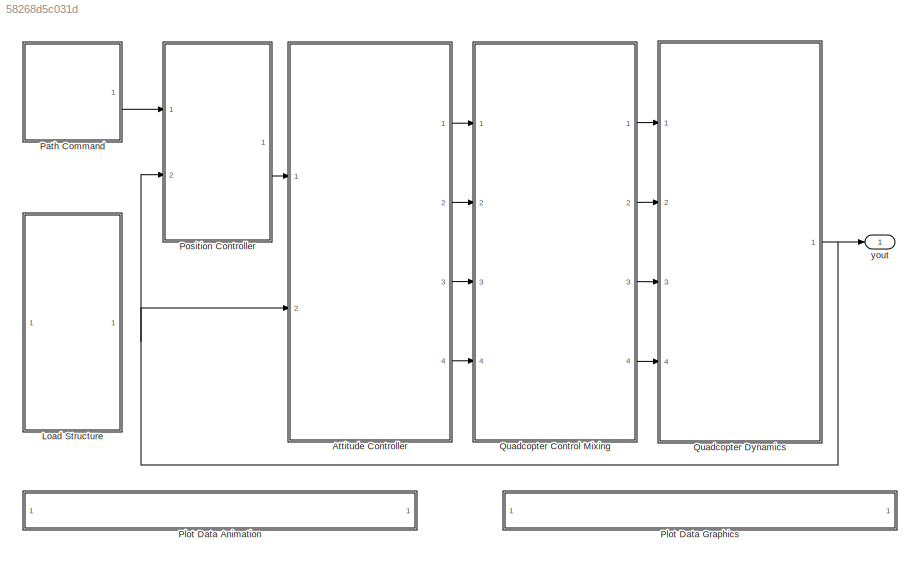
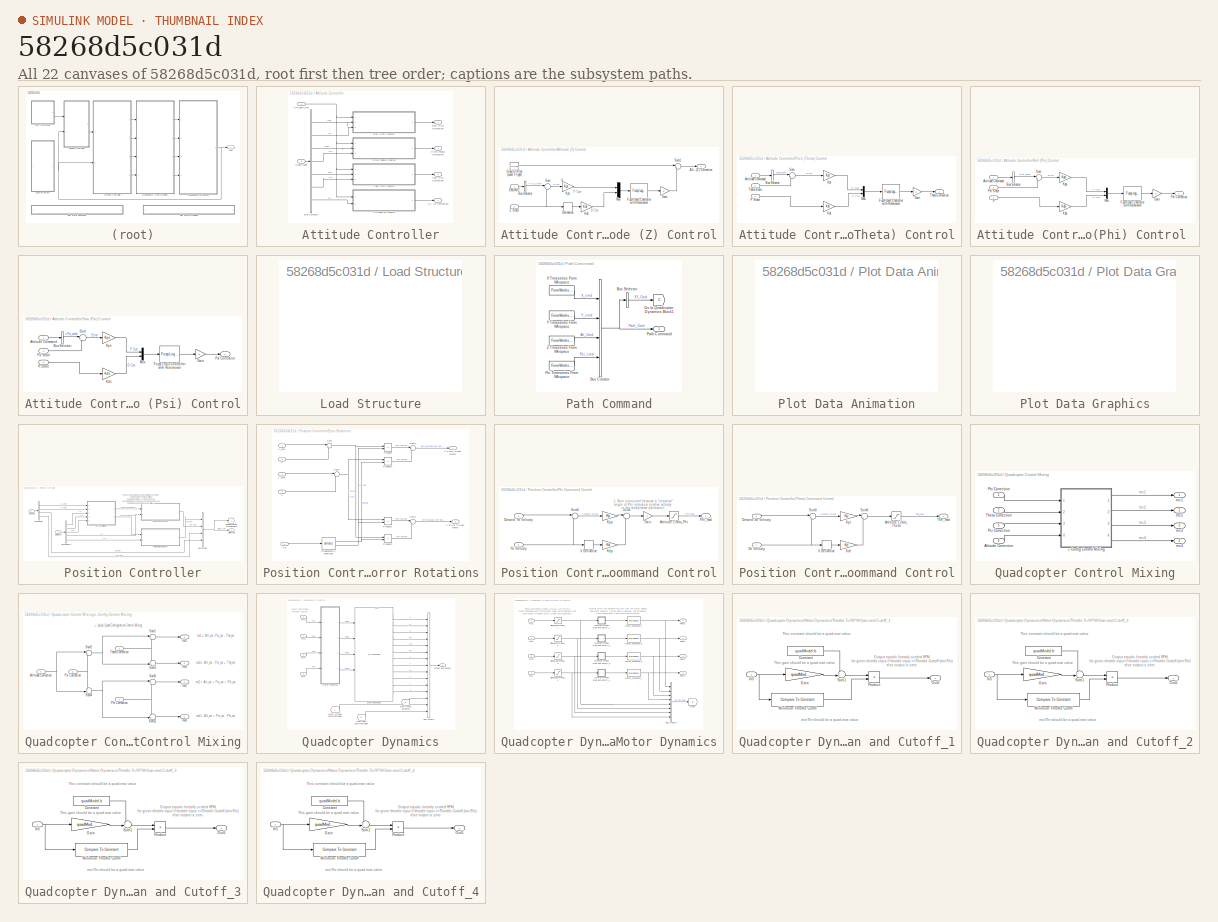
[diagram: thumbnail index - all 22 canvases of the model, root first then tree order]
MODEL slx_58268d5c031d
KIND model
CONFIG AbsTol = auto
CONFIG FixedStep = 0.05
CONFIG MaxStep = 0.06
CONFIG MinStep = auto
CONFIG RelTol = 1e-3
CONFIG SampleTimeConstraint = Unconstrained
CONFIG Solver = ode23
CONFIG SolverMode = Auto
CONFIG SolverName = ode23
CONFIG StartTime = 0.0
CONFIG StopTime = 45
WORKSPACE source: MAT-file member
WORKSPACE MCOS: class17 (value not decoded)
BLOCK [SubSystem] Attitude Controller
  Ports = [2, 4]
  RequestExecContextInheritance = off
BLOCK [Outport] Attitude Controller/Alt. (Z) Correction
  IconDisplay = Port number
  Port = 4
BLOCK [SubSystem] Attitude Controller/Altitude (Z) Control
  Ports = [2, 1]
  RequestExecContextInheritance = off
BLOCK [Outport] Attitude Controller/Altitude (Z) Control/Alt. (Z) Correction
  IconDisplay = Port number
BLOCK [BusSelector] Attitude Controller/Altitude (Z) Control/Bus Selector
  OutputSignals = Alt_Cmd
  Ports = [1, 1]
BLOCK [Derivative] Attitude Controller/Altitude (Z) Control/Derivative
BLOCK [Inport] Attitude Controller/Altitude (Z) Control/Desired Z
  IconDisplay = Port number
BLOCK [Reference] Attitude Controller/Altitude (Z) Control/Fuzzy Logic Controller with Ruleviewer  REF=fuzblock/Fuzzy Logic   (lib defined in mdl_858b3b3e7478)
Controller 
with Ruleviewer
  Ports = [1, 1]
  SourceBlock = fuzblock/Fuzzy Logic \nController \nwith Ruleviewer
  SourceType = FIS
  Ts = 2
  fismatrix = Z_correction
BLOCK [Gain] Attitude Controller/Altitude (Z) Control/Gain
  OutDataTypeStr = Inherit: Inherit via internal rule
  ParamDataTypeStr = Inherit: Inherit via internal rule
  SaturateOnIntegerOverflow = off
BLOCK [Constant] Attitude Controller/Altitude (Z) Control/Gravity Offset (Level Flight)
  Value = GOffset
BLOCK [Gain] Attitude Controller/Altitude (Z) Control/Kdz
  Gain = Kdz
  OutDataTypeStr = Inherit: Inherit via internal rule
  ParamDataTypeStr = Inherit: Inherit via internal rule
  SaturateOnIntegerOverflow = off
BLOCK [Gain] Attitude Controller/Altitude (Z) Control/Kpz
  Gain = Kpz
  OutDataTypeStr = Inherit: Inherit via internal rule
  ParamDataTypeStr = Inherit: Inherit via internal rule
  SaturateOnIntegerOverflow = off
BLOCK [Mux] Attitude Controller/Altitude (Z) Control/Mux
  DisplayOption = bar
  Inputs = 2
  Ports = [2, 1]
BLOCK [Sum] Attitude Controller/Altitude (Z) Control/Sum
  IconShape = round
  InputSameDT = off
  Inputs = |+-
  OutDataTypeStr = Inherit: Inherit via internal rule
  Ports = [2, 1]
  SaturateOnIntegerOverflow = off
BLOCK [Sum] Attitude Controller/Altitude (Z) Control/Sum1
  IconShape = round
  InputSameDT = off
  Inputs = |++
  OutDataTypeStr = Inherit: Inherit via internal rule
  Ports = [2, 1]
  SaturateOnIntegerOverflow = off
BLOCK [Inport] Attitude Controller/Altitude (Z) Control/Z State
  IconDisplay = Port number
  Port = 2
BLOCK [Inport] Attitude Controller/Attitude Cmd
  IconDisplay = Port number
BLOCK [BusSelector] Attitude Controller/Bus Selector
  OutputSignals = Phi,P,The,Q,Psi,R,Z
  Ports = [1, 7]
BLOCK [SubSystem] Attitude Controller/Pitch (Theta) Control
  Ports = [3, 1]
  RequestExecContextInheritance = off
BLOCK [Inport] Attitude Controller/Pitch (Theta) Control/Attitude Command
  IconDisplay = Port number
BLOCK [BusSelector] Attitude Controller/Pitch (Theta) Control/Bus Selector
  OutputSignals = The_cmd
  Ports = [1, 1]
BLOCK [Reference] Attitude Controller/Pitch (Theta) Control/Fuzzy Logic Controller with Ruleviewer  REF=fuzblock/Fuzzy Logic   (lib defined in mdl_858b3b3e7478)
Controller 
with Ruleviewer
  Ports = [1, 1]
  SourceBlock = fuzblock/Fuzzy Logic \nController \nwith Ruleviewer
  SourceType = FIS
  Ts = 2
  fismatrix = pitch_correction2
BLOCK [Gain] Attitude Controller/Pitch (Theta) Control/Gain
  Gain = 5
  OutDataTypeStr = Inherit: Inherit via internal rule
  ParamDataTypeStr = Inherit: Inherit via internal rule
  SaturateOnIntegerOverflow = off
BLOCK [Gain] Attitude Controller/Pitch (Theta) Control/Kdt
  Gain = Kdt
  OutDataTypeStr = Inherit: Inherit via internal rule
  ParamDataTypeStr = Inherit: Inherit via internal rule
  SaturateOnIntegerOverflow = off
BLOCK [Gain] Attitude Controller/Pitch (Theta) Control/Kpt
  Gain = Kpt
  OutDataTypeStr = Inherit: Inherit via internal rule
  ParamDataTypeStr = Inherit: Inherit via internal rule
  SaturateOnIntegerOverflow = off
BLOCK [Mux] Attitude Controller/Pitch (Theta) Control/Mux
  DisplayOption = bar
  Inputs = 2
  Ports = [2, 1]
BLOCK [Inport] Attitude Controller/Pitch (Theta) Control/P State
  IconDisplay = Port number
  Port = 3
BLOCK [Sum] Attitude Controller/Pitch (Theta) Control/Sum
  IconShape = round
  InputSameDT = off
  Inputs = |+-
  OutDataTypeStr = Inherit: Inherit via internal rule
  Ports = [2, 1]
  SaturateOnIntegerOverflow = off
BLOCK [Outport] Attitude Controller/Pitch (Theta) Control/Theta Correction
  IconDisplay = Port number
BLOCK [Inport] Attitude Controller/Pitch (Theta) Control/Theta State
  IconDisplay = Port number
  Port = 2
BLOCK [Outport] Attitude Controller/Pitch (Theta) Correction
  IconDisplay = Port number
  Port = 2
BLOCK [SubSystem] Attitude Controller/Roll (Phi) Control 
  Ports = [3, 1]
  RequestExecContextInheritance = off
BLOCK [Inport] Attitude Controller/Roll (Phi) Control /Attitude Command 
  IconDisplay = Port number
BLOCK [BusSelector] Attitude Controller/Roll (Phi) Control /Bus Selector
  OutputSignals = Phi_cmd
  Ports = [1, 1]
BLOCK [Reference] Attitude Controller/Roll (Phi) Control /Fuzzy Logic Controller with Ruleviewer  REF=fuzblock/Fuzzy Logic   (lib defined in mdl_858b3b3e7478)
Controller 
with Ruleviewer
  Ports = [1, 1]
  SourceBlock = fuzblock/Fuzzy Logic \nController \nwith Ruleviewer
  SourceType = FIS
  Ts = 2
  fismatrix = roll_correction2
BLOCK [Gain] Attitude Controller/Roll (Phi) Control /Gain
  Gain = 5
  OutDataTypeStr = Inherit: Inherit via internal rule
  ParamDataTypeStr = Inherit: Inherit via internal rule
  SaturateOnIntegerOverflow = off
BLOCK [Gain] Attitude Controller/Roll (Phi) Control /Kdp
  Gain = Kdp
  OutDataTypeStr = Inherit: Inherit via internal rule
  ParamDataTypeStr = Inherit: Inherit via internal rule
  SaturateOnIntegerOverflow = off
BLOCK [Gain] Attitude Controller/Roll (Phi) Control /Kpp
  Gain = Kpp
  OutDataTypeStr = Inherit: Inherit via internal rule
  ParamDataTypeStr = Inherit: Inherit via internal rule
  SaturateOnIntegerOverflow = off
BLOCK [Mux] Attitude Controller/Roll (Phi) Control /Mux
  DisplayOption = bar
  Inputs = 2
  Ports = [2, 1]
BLOCK [Inport] Attitude Controller/Roll (Phi) Control /P
  IconDisplay = Port number
  Port = 3
BLOCK [Outport] Attitude Controller/Roll (Phi) Control /Phi Correction
  IconDisplay = Port number
BLOCK [Inport] Attitude Controller/Roll (Phi) Control /Phi State
  IconDisplay = Port number
  Port = 2
BLOCK [Sum] Attitude Controller/Roll (Phi) Control /Sum
  IconShape = round
  InputSameDT = off
  Inputs = |+-
  OutDataTypeStr = Inherit: Inherit via internal rule
  Ports = [2, 1]
  SaturateOnIntegerOverflow = off
BLOCK [Outport] Attitude Controller/Roll (Phi) Correction
  IconDisplay = Port number
BLOCK [Inport] Attitude Controller/State Input
  IconDisplay = Port number
  Port = 2
BLOCK [SubSystem] Attitude Controller/Yaw (Psi) Control
  Ports = [3, 1]
  RequestExecContextInheritance = off
BLOCK [Inport] Attitude Controller/Yaw (Psi) Control/Attitude Command
  IconDisplay = Port number
BLOCK [BusSelector] Attitude Controller/Yaw (Psi) Control/Bus Selector
  OutputSignals = Psi_cmd
  Ports = [1, 1]
BLOCK [Reference] Attitude Controller/Yaw (Psi) Control/Fuzzy Logic Controller with Ruleviewer  REF=fuzblock/Fuzzy Logic   (lib defined in mdl_858b3b3e7478)
Controller 
with Ruleviewer
  Ports = [1, 1]
  SourceBlock = fuzblock/Fuzzy Logic \nController \nwith Ruleviewer
  SourceType = FIS
  Ts = 2
  fismatrix = yaw_correction2
BLOCK [Gain] Attitude Controller/Yaw (Psi) Control/Gain
  Gain = 5
  OutDataTypeStr = Inherit: Inherit via internal rule
  ParamDataTypeStr = Inherit: Inherit via internal rule
  SaturateOnIntegerOverflow = off
BLOCK [Gain] Attitude Controller/Yaw (Psi) Control/Kds
  Gain = Kds
  OutDataTypeStr = Inherit: Inherit via internal rule
  ParamDataTypeStr = Inherit: Inherit via internal rule
  SaturateOnIntegerOverflow = off
BLOCK [Gain] Attitude Controller/Yaw (Psi) Control/Kps
  Gain = Kps
  OutDataTypeStr = Inherit: Inherit via internal rule
  ParamDataTypeStr = Inherit: Inherit via internal rule
  SaturateOnIntegerOverflow = off
BLOCK [Mux] Attitude Controller/Yaw (Psi) Control/Mux
  DisplayOption = bar
  Inputs = 2
  Ports = [2, 1]
BLOCK [Outport] Attitude Controller/Yaw (Psi) Control/Psi Correction
  IconDisplay = Port number
BLOCK [Inport] Attitude Controller/Yaw (Psi) Control/Psi State
  IconDisplay = Port number
  Port = 2
BLOCK [Inport] Attitude Controller/Yaw (Psi) Control/R State
  IconDisplay = Port number
  Port = 3
BLOCK [Sum] Attitude Controller/Yaw (Psi) Control/Sum
  IconShape = round
  InputSameDT = off
  Inputs = |+-
  OutDataTypeStr = Inherit: Inherit via internal rule
  Ports = [2, 1]
  SaturateOnIntegerOverflow = off
BLOCK [Outport] Attitude Controller/Yaw (Psi) Correction
  IconDisplay = Port number
  Port = 3
BLOCK [SubSystem] Load Structure
  OpenFcn = uiopen('load')                                                        \nif ((exist('IC')==1) && (exist('quadModel')==1) && (exist('path')==1))\nset_param(bdroot, 'SimulationCommand', 'update')                      \nend
  Ports = []
  RequestExecContextInheritance = off
  ShowPortLabels = FromPortBlockName
BLOCK [SubSystem] Path Command
  Ports = [0, 1]
  RequestExecContextInheritance = off
BLOCK [BusCreator] Path Command/Bus Creator
  DisplayOption = bar
  Ports = [4, 1]
BLOCK [BusSelector] Path Command/Bus Selector
  OutputAsBus = on
  OutputSignals = X_cmd,Y_cmd
  Ports = [1, 1]
BLOCK [Goto] Path Command/Go to Quadcopter Dynamics Block1
  GotoTag = C
  TagVisibility = global
BLOCK [Outport] Path Command/Path Command 
  IconDisplay = Port number
BLOCK [FromWorkspace] Path Command/Psi Timeseries From Wkspace
  OutputAfterFinalValue = Holding final value
  SampleTime = 0
  VariableName = path.psi
  ZeroCross = on
BLOCK [FromWorkspace] Path Command/X Timeseries From Wkspace
  OutputAfterFinalValue = Holding final value
  SampleTime = 0
  VariableName = path.x
  ZeroCross = on
BLOCK [FromWorkspace] Path Command/Y Timeseries From Wkspace
  OutputAfterFinalValue = Holding final value
  SampleTime = 0
  VariableName = path.y
  ZeroCross = on
BLOCK [FromWorkspace] Path Command/Z Timeseries From Wkspace
  OutputAfterFinalValue = Holding final value
  SampleTime = 0
  VariableName = path.z
  ZeroCross = on
BLOCK [SubSystem] Plot Data Animation
  OpenFcn = if exist('QuadAnim4') == 2,                                                                                                                 \n    if exist('yout')                                                                                                                        \n	run('QuadAnim4');                                                                                                    ...<+590ch>
  Ports = []
  RequestExecContextInheritance = off
  ShowPortLabels = FromPortBlockName
BLOCK [SubSystem] Plot Data Graphics
  OpenFcn = if exist('yout')                                            \nyout = evalin('base', 'yout');                              \ntout = evalin('base', 'tout');                              \nquadPlots(yout, tout)                                       \nelse                                                        \nmsgbox('Simulation must be run before data can be plotted.')\nend
  Ports = []
  RequestExecContextInheritance = off
  ShowPortLabels = FromPortBlockName
BLOCK [SubSystem] Position Controller
  Ports = [2, 1]
  RequestExecContextInheritance = off
BLOCK [Outport] Position Controller/Attitude Cmd
  IconDisplay = Port number
BLOCK [BusCreator] Position Controller/Bus Creator
  DisplayOption = bar
  Ports = [4, 1]
BLOCK [BusSelector] Position Controller/Bus Selector
  OutputSignals = X_cmd,Y_cmd,Alt_Cmd,Psi_cmd
  Ports = [1, 4]
BLOCK [BusSelector] Position Controller/Bus Selector1
  OutputSignals = X,Y,Psi,U,V
  Ports = [1, 5]
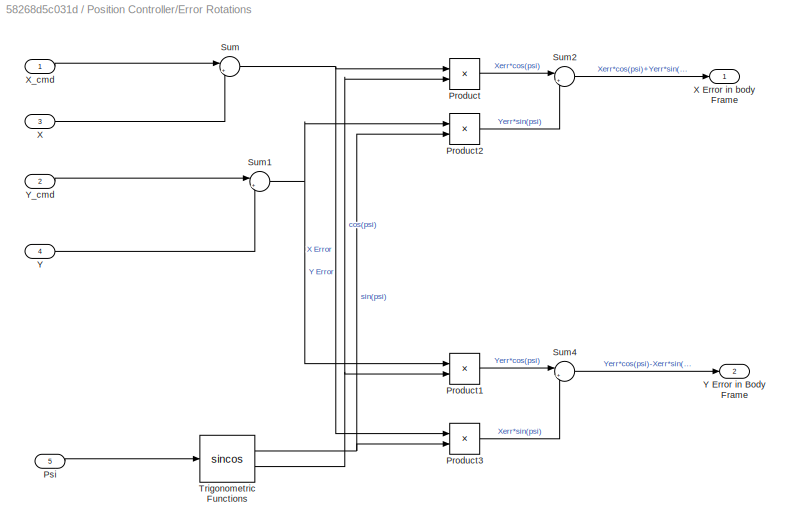
BLOCK [SubSystem] Position Controller/Error Rotations
  Ports = [5, 2]
  RequestExecContextInheritance = off
BLOCK [Product] Position Controller/Error Rotations/Product
  InputSameDT = off
  OutDataTypeStr = Inherit: Inherit via internal rule
  Ports = [2, 1]
  RndMeth = Floor
  SaturateOnIntegerOverflow = off
BLOCK [Product] Position Controller/Error Rotations/Product1
  InputSameDT = off
  OutDataTypeStr = Inherit: Inherit via internal rule
  Ports = [2, 1]
  RndMeth = Floor
  SaturateOnIntegerOverflow = off
BLOCK [Product] Position Controller/Error Rotations/Product2
  InputSameDT = off
  OutDataTypeStr = Inherit: Inherit via internal rule
  Ports = [2, 1]
  RndMeth = Floor
  SaturateOnIntegerOverflow = off
BLOCK [Product] Position Controller/Error Rotations/Product3
  InputSameDT = off
  OutDataTypeStr = Inherit: Inherit via internal rule
  Ports = [2, 1]
  RndMeth = Floor
  SaturateOnIntegerOverflow = off
BLOCK [Inport] Position Controller/Error Rotations/Psi
  IconDisplay = Port number
  Port = 5
BLOCK [Sum] Position Controller/Error Rotations/Sum
  IconShape = round
  InputSameDT = off
  Inputs = |+-
  OutDataTypeStr = Inherit: Inherit via internal rule
  Ports = [2, 1]
  SaturateOnIntegerOverflow = off
BLOCK [Sum] Position Controller/Error Rotations/Sum1
  IconShape = round
  InputSameDT = off
  Inputs = |+-
  OutDataTypeStr = Inherit: Inherit via internal rule
  Ports = [2, 1]
  SaturateOnIntegerOverflow = off
BLOCK [Sum] Position Controller/Error Rotations/Sum2
  IconShape = round
  InputSameDT = off
  Inputs = |++
  OutDataTypeStr = Inherit: Inherit via internal rule
  Ports = [2, 1]
  SaturateOnIntegerOverflow = off
BLOCK [Sum] Position Controller/Error Rotations/Sum4
  IconShape = round
  InputSameDT = off
  Inputs = |+-
  OutDataTypeStr = Inherit: Inherit via internal rule
  Ports = [2, 1]
  SaturateOnIntegerOverflow = off
BLOCK [Trigonometry] Position Controller/Error Rotations/Trigonometric Functions
  Operator = sincos
  Ports = [1, 2]
BLOCK [Inport] Position Controller/Error Rotations/X
  IconDisplay = Port number
  Port = 3
BLOCK [Outport] Position Controller/Error Rotations/X Error in body Frame
  IconDisplay = Port number
BLOCK [Inport] Position Controller/Error Rotations/X_cmd
  IconDisplay = Port number
BLOCK [Inport] Position Controller/Error Rotations/Y
  IconDisplay = Port number
  Port = 4
BLOCK [Outport] Position Controller/Error Rotations/Y Error in Body Frame
  IconDisplay = Port number
  Port = 2
BLOCK [Inport] Position Controller/Error Rotations/Y_cmd
  IconDisplay = Port number
  Port = 2
BLOCK [Goto] Position Controller/Goto Quadcopter Dynamics Block
  TagVisibility = global
BLOCK [Inport] Position Controller/Path Cmd
  IconDisplay = Port number
BLOCK [SubSystem] Position Controller/Phi Command Control
  Ports = [2, 1]
  RequestExecContextInheritance = off
BLOCK [Saturate] Position Controller/Phi Command Control/Attitude Limits_Phi
  InputPortMap = u0
  LowerLimit = -ASat
  Ports = [1, 1]
  UpperLimit = ASat
BLOCK [Inport] Position Controller/Phi Command Control/Desired Yb Velocity
  IconDisplay = Port number
BLOCK [Gain] Position Controller/Phi Command Control/Gain
  Gain = -1
  OutDataTypeStr = Inherit: Inherit via internal rule
  ParamDataTypeStr = Inherit: Inherit via internal rule
  SaturateOnIntegerOverflow = off
BLOCK [Gain] Position Controller/Phi Command Control/Kdp
  Gain = Kd
  OutDataTypeStr = Inherit: Inherit via internal rule
  ParamDataTypeStr = Inherit: Inherit via internal rule
  SaturateOnIntegerOverflow = off
BLOCK [Gain] Position Controller/Phi Command Control/Kpp
  Gain = Kp
  OutDataTypeStr = Inherit: Inherit via internal rule
  ParamDataTypeStr = Inherit: Inherit via internal rule
  SaturateOnIntegerOverflow = off
BLOCK [Outport] Position Controller/Phi Command Control/Phi_cmd
  IconDisplay = Port number
BLOCK [Sum] Position Controller/Phi Command Control/Sum3
  IconShape = round
  InputSameDT = off
  Inputs = |+-
  OutDataTypeStr = Inherit: Inherit via internal rule
  Ports = [2, 1]
  SaturateOnIntegerOverflow = off
BLOCK [Sum] Position Controller/Phi Command Control/Sum6
  IconShape = round
  InputSameDT = off
  Inputs = |+-
  OutDataTypeStr = Inherit: Inherit via internal rule
  Ports = [2, 1]
  SaturateOnIntegerOverflow = off
BLOCK [Derivative] Position Controller/Phi Command Control/V Derivative
BLOCK [Inport] Position Controller/Phi Command Control/Yb Velocity
  IconDisplay = Port number
  Port = 2
BLOCK [Inport] Position Controller/State Input
  IconDisplay = Port number
  Port = 2
BLOCK [SubSystem] Position Controller/Theta Command Control
  Ports = [2, 1]
  RequestExecContextInheritance = off
BLOCK [Saturate] Position Controller/Theta Command Control/Attitude Limits_Theta
  InputPortMap = u0
  LowerLimit = -ASat
  Ports = [1, 1]
  UpperLimit = ASat
BLOCK [Inport] Position Controller/Theta Command Control/Desired Xb Velocity
  IconDisplay = Port number
BLOCK [Gain] Position Controller/Theta Command Control/Kdt
  Gain = Kd
  OutDataTypeStr = Inherit: Inherit via internal rule
  ParamDataTypeStr = Inherit: Inherit via internal rule
  SaturateOnIntegerOverflow = off
BLOCK [Gain] Position Controller/Theta Command Control/Kpt
  Gain = Kp
  OutDataTypeStr = Inherit: Inherit via internal rule
  ParamDataTypeStr = Inherit: Inherit via internal rule
  SaturateOnIntegerOverflow = off
BLOCK [Sum] Position Controller/Theta Command Control/Sum3
  IconShape = round
  InputSameDT = off
  Inputs = |+-
  OutDataTypeStr = Inherit: Inherit via internal rule
  Ports = [2, 1]
  SaturateOnIntegerOverflow = off
BLOCK [Sum] Position Controller/Theta Command Control/Sum6
  IconShape = round
  InputSameDT = off
  Inputs = |+-
  OutDataTypeStr = Inherit: Inherit via internal rule
  Ports = [2, 1]
  SaturateOnIntegerOverflow = off
BLOCK [Outport] Position Controller/Theta Command Control/The_cmd
  IconDisplay = Port number
BLOCK [Derivative] Position Controller/Theta Command Control/U Derivative
BLOCK [Inport] Position Controller/Theta Command Control/Xb Velocity
  IconDisplay = Port number
  Port = 2
BLOCK [SubSystem] Quadcopter Control Mixing
  Ports = [4, 4]
  RequestExecContextInheritance = off
BLOCK [SubSystem] Quadcopter Control Mixing/+ Config Control Mixing
  Ports = [4, 4]
  RequestExecContextInheritance = off
BLOCK [Inport] Quadcopter Control Mixing/+ Config Control Mixing/Altitude Correction
  IconDisplay = Port number
  Port = 4
BLOCK [Inport] Quadcopter Control Mixing/+ Config Control Mixing/Phi Correction
  IconDisplay = Port number
BLOCK [Inport] Quadcopter Control Mixing/+ Config Control Mixing/Psi Correction
  IconDisplay = Port number
  Port = 3
BLOCK [Sum] Quadcopter Control Mixing/+ Config Control Mixing/Sum1
  IconShape = round
  InputSameDT = off
  Inputs = |+-
  OutDataTypeStr = Inherit: Inherit via internal rule
  Ports = [2, 1]
  SaturateOnIntegerOverflow = off
BLOCK [Sum] Quadcopter Control Mixing/+ Config Control Mixing/Sum11
  IconShape = round
  InputSameDT = off
  Inputs = -+|
  OutDataTypeStr = Inherit: Inherit via internal rule
  Ports = [2, 1]
  SaturateOnIntegerOverflow = off
BLOCK [Sum] Quadcopter Control Mixing/+ Config Control Mixing/Sum2
  IconShape = round
  InputSameDT = off
  Inputs = |+-
  OutDataTypeStr = Inherit: Inherit via internal rule
  Ports = [2, 1]
  SaturateOnIntegerOverflow = off
BLOCK [Sum] Quadcopter Control Mixing/+ Config Control Mixing/Sum3
  IconShape = round
  InputSameDT = off
  Inputs = ++|
  OutDataTypeStr = Inherit: Inherit via internal rule
  Ports = [2, 1]
  SaturateOnIntegerOverflow = off
BLOCK [Sum] Quadcopter Control Mixing/+ Config Control Mixing/Sum4
  IconShape = round
  InputSameDT = off
  Inputs = ++|
  OutDataTypeStr = Inherit: Inherit via internal rule
  Ports = [2, 1]
  SaturateOnIntegerOverflow = off
BLOCK [Sum] Quadcopter Control Mixing/+ Config Control Mixing/Sum8
  IconShape = round
  InputSameDT = off
  Inputs = |++
  OutDataTypeStr = Inherit: Inherit via internal rule
  Ports = [2, 1]
  SaturateOnIntegerOverflow = off
BLOCK [Inport] Quadcopter Control Mixing/+ Config Control Mixing/Theta Correction
  IconDisplay = Port number
  Port = 2
BLOCK [Outport] Quadcopter Control Mixing/+ Config Control Mixing/mc1
  IconDisplay = Port number
BLOCK [Outport] Quadcopter Control Mixing/+ Config Control Mixing/mc2
  IconDisplay = Port number
  Port = 2
BLOCK [Outport] Quadcopter Control Mixing/+ Config Control Mixing/mc3
  IconDisplay = Port number
  Port = 3
BLOCK [Outport] Quadcopter Control Mixing/+ Config Control Mixing/mc4
  IconDisplay = Port number
  Port = 4
BLOCK [Inport] Quadcopter Control Mixing/Altitude Correction
  IconDisplay = Port number
  Port = 4
BLOCK [Inport] Quadcopter Control Mixing/Phi Correction
  IconDisplay = Port number
BLOCK [Inport] Quadcopter Control Mixing/Psi Correction
  IconDisplay = Port number
  Port = 3
BLOCK [Inport] Quadcopter Control Mixing/Theta Correction
  IconDisplay = Port number
  Port = 2
BLOCK [Outport] Quadcopter Control Mixing/mc1
  IconDisplay = Port number
BLOCK [Outport] Quadcopter Control Mixing/mc2
  IconDisplay = Port number
  Port = 2
BLOCK [Outport] Quadcopter Control Mixing/mc3
  IconDisplay = Port number
  Port = 3
BLOCK [Outport] Quadcopter Control Mixing/mc4
  IconDisplay = Port number
  Port = 4
BLOCK [SubSystem] Quadcopter Dynamics
  Ports = [4, 1]
  RequestExecContextInheritance = off
BLOCK [BusCreator] Quadcopter Dynamics/Bus Creator
  DisplayOption = bar
  Inputs = 'P','Q','R','Phi','The','Psi','U','V','W','X','Y','Z','mc and RPM','Attitude_Cmd','XY_Cmd'
  Ports = [15, 1]
BLOCK [From] Quadcopter Dynamics/From Attitude Command Block
  TagVisibility = global
BLOCK [From] Quadcopter Dynamics/From Motor Dynamics
  GotoTag = B
  TagVisibility = global
BLOCK [From] Quadcopter Dynamics/From Path Command Block
  GotoTag = C
  TagVisibility = global
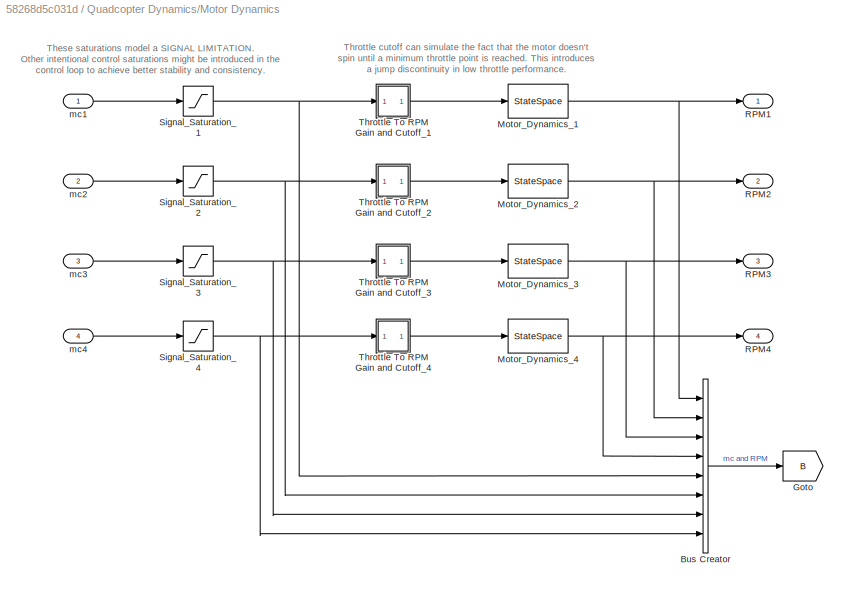
BLOCK [SubSystem] Quadcopter Dynamics/Motor Dynamics
  Ports = [4, 4]
  RequestExecContextInheritance = off
BLOCK [BusCreator] Quadcopter Dynamics/Motor Dynamics/Bus Creator
  DisplayOption = bar
  Inputs = 8
  Ports = [8, 1]
BLOCK [Goto] Quadcopter Dynamics/Motor Dynamics/Goto
  GotoTag = B
  TagVisibility = global
BLOCK [StateSpace] Quadcopter Dynamics/Motor Dynamics/Motor_Dynamics_1
  A = -1/quadModel.T
  C = 1/quadModel.T
  D = 0
  Ports = [1, 1]
  X0 = IC.w1*quadModel.T
BLOCK [StateSpace] Quadcopter Dynamics/Motor Dynamics/Motor_Dynamics_2
  A = -1/quadModel.T
  C = 1/quadModel.T
  D = 0
  Ports = [1, 1]
  X0 = IC.w2*quadModel.T
BLOCK [StateSpace] Quadcopter Dynamics/Motor Dynamics/Motor_Dynamics_3
  A = -1/quadModel.T
  C = 1/quadModel.T
  D = 0
  Ports = [1, 1]
  X0 = IC.w3*quadModel.T
BLOCK [StateSpace] Quadcopter Dynamics/Motor Dynamics/Motor_Dynamics_4
  A = -1/quadModel.T
  C = 1/quadModel.T
  D = 0
  Ports = [1, 1]
  X0 = IC.w4*quadModel.T
BLOCK [Outport] Quadcopter Dynamics/Motor Dynamics/RPM1
  IconDisplay = Port number
BLOCK [Outport] Quadcopter Dynamics/Motor Dynamics/RPM2
  IconDisplay = Port number
  Port = 2
BLOCK [Outport] Quadcopter Dynamics/Motor Dynamics/RPM3
  IconDisplay = Port number
  Port = 3
BLOCK [Outport] Quadcopter Dynamics/Motor Dynamics/RPM4
  IconDisplay = Port number
  Port = 4
BLOCK [Saturate] Quadcopter Dynamics/Motor Dynamics/Signal_Saturation_1
  InputPortMap = u0
  LowerLimit = 0
  Ports = [1, 1]
  UpperLimit = 100
BLOCK [Saturate] Quadcopter Dynamics/Motor Dynamics/Signal_Saturation_2
  InputPortMap = u0
  LowerLimit = 0
  Ports = [1, 1]
  UpperLimit = 100
BLOCK [Saturate] Quadcopter Dynamics/Motor Dynamics/Signal_Saturation_3
  InputPortMap = u0
  LowerLimit = 0
  Ports = [1, 1]
  UpperLimit = 100
BLOCK [Saturate] Quadcopter Dynamics/Motor Dynamics/Signal_Saturation_4
  InputPortMap = u0
  LowerLimit = 0
  Ports = [1, 1]
  UpperLimit = 100
BLOCK [SubSystem] Quadcopter Dynamics/Motor Dynamics/Throttle To RPM Gain and Cutoff_1
  Ports = [1, 1]
  RequestExecContextInheritance = off
  ShowPortLabels = none
BLOCK [Constant] Quadcopter Dynamics/Motor Dynamics/Throttle To RPM Gain and Cutoff_1/Constant
  Value = quadModel.b
BLOCK [Gain] Quadcopter Dynamics/Motor Dynamics/Throttle To RPM Gain and Cutoff_1/Gain
  Gain = quadModel.cr
  OutDataTypeStr = Inherit: Inherit via internal rule
  ParamDataTypeStr = Inherit: Inherit via internal rule
  SaturateOnIntegerOverflow = off
BLOCK [Inport] Quadcopter Dynamics/Motor Dynamics/Throttle To RPM Gain and Cutoff_1/In5
  IconDisplay = Port number
BLOCK [Reference] Quadcopter Dynamics/Motor Dynamics/Throttle To RPM Gain and Cutoff_1/Minimum Throttle Cutoff  REF=simulink/Logic and Bit
Operations/Compare
To Constant
  OutDataTypeStr = uint8
  Ports = [1, 1]
  SourceBlock = simulink/Logic and Bit\nOperations/Compare\nTo Constant
  SourceType = Compare To Constant
  ZeroCross = on
  const = quadModel.minThr
  relop = >=
BLOCK [Outport] Quadcopter Dynamics/Motor Dynamics/Throttle To RPM Gain and Cutoff_1/Out5
  IconDisplay = Port number
BLOCK [Product] Quadcopter Dynamics/Motor Dynamics/Throttle To RPM Gain and Cutoff_1/Product
  InputSameDT = off
  OutDataTypeStr = Inherit: Inherit via internal rule
  Ports = [2, 1]
  RndMeth = Floor
  SaturateOnIntegerOverflow = off
BLOCK [Sum] Quadcopter Dynamics/Motor Dynamics/Throttle To RPM Gain and Cutoff_1/Sum1
  IconShape = round
  InputSameDT = off
  Inputs = ++|
  OutDataTypeStr = Inherit: Inherit via internal rule
  Ports = [2, 1]
  SaturateOnIntegerOverflow = off
BLOCK [SubSystem] Quadcopter Dynamics/Motor Dynamics/Throttle To RPM Gain and Cutoff_2
  Ports = [1, 1]
  RequestExecContextInheritance = off
  ShowPortLabels = none
BLOCK [Constant] Quadcopter Dynamics/Motor Dynamics/Throttle To RPM Gain and Cutoff_2/Constant
  Value = quadModel.b
BLOCK [Gain] Quadcopter Dynamics/Motor Dynamics/Throttle To RPM Gain and Cutoff_2/Gain
  Gain = quadModel.cr
  OutDataTypeStr = Inherit: Inherit via internal rule
  ParamDataTypeStr = Inherit: Inherit via internal rule
  SaturateOnIntegerOverflow = off
BLOCK [Inport] Quadcopter Dynamics/Motor Dynamics/Throttle To RPM Gain and Cutoff_2/In5
  IconDisplay = Port number
BLOCK [Reference] Quadcopter Dynamics/Motor Dynamics/Throttle To RPM Gain and Cutoff_2/Minimum Throttle Cutoff  REF=simulink/Logic and Bit
Operations/Compare
To Constant
  OutDataTypeStr = uint8
  Ports = [1, 1]
  SourceBlock = simulink/Logic and Bit\nOperations/Compare\nTo Constant
  SourceType = Compare To Constant
  ZeroCross = on
  const = quadModel.minThr
  relop = >=
BLOCK [Outport] Quadcopter Dynamics/Motor Dynamics/Throttle To RPM Gain and Cutoff_2/Out5
  IconDisplay = Port number
BLOCK [Product] Quadcopter Dynamics/Motor Dynamics/Throttle To RPM Gain and Cutoff_2/Product
  InputSameDT = off
  OutDataTypeStr = Inherit: Inherit via internal rule
  Ports = [2, 1]
  RndMeth = Floor
  SaturateOnIntegerOverflow = off
BLOCK [Sum] Quadcopter Dynamics/Motor Dynamics/Throttle To RPM Gain and Cutoff_2/Sum1
  IconShape = round
  InputSameDT = off
  Inputs = ++|
  OutDataTypeStr = Inherit: Inherit via internal rule
  Ports = [2, 1]
  SaturateOnIntegerOverflow = off
BLOCK [SubSystem] Quadcopter Dynamics/Motor Dynamics/Throttle To RPM Gain and Cutoff_3
  Ports = [1, 1]
  RequestExecContextInheritance = off
  ShowPortLabels = none
BLOCK [Constant] Quadcopter Dynamics/Motor Dynamics/Throttle To RPM Gain and Cutoff_3/Constant
  Value = quadModel.b
BLOCK [Gain] Quadcopter Dynamics/Motor Dynamics/Throttle To RPM Gain and Cutoff_3/Gain
  Gain = quadModel.cr
  OutDataTypeStr = Inherit: Inherit via internal rule
  ParamDataTypeStr = Inherit: Inherit via internal rule
  SaturateOnIntegerOverflow = off
BLOCK [Inport] Quadcopter Dynamics/Motor Dynamics/Throttle To RPM Gain and Cutoff_3/In5
  IconDisplay = Port number
BLOCK [Reference] Quadcopter Dynamics/Motor Dynamics/Throttle To RPM Gain and Cutoff_3/Minimum Throttle Cutoff  REF=simulink/Logic and Bit
Operations/Compare
To Constant
  OutDataTypeStr = uint8
  Ports = [1, 1]
  SourceBlock = simulink/Logic and Bit\nOperations/Compare\nTo Constant
  SourceType = Compare To Constant
  ZeroCross = on
  const = quadModel.minThr
  relop = >=
BLOCK [Outport] Quadcopter Dynamics/Motor Dynamics/Throttle To RPM Gain and Cutoff_3/Out5
  IconDisplay = Port number
BLOCK [Product] Quadcopter Dynamics/Motor Dynamics/Throttle To RPM Gain and Cutoff_3/Product
  InputSameDT = off
  OutDataTypeStr = Inherit: Inherit via internal rule
  Ports = [2, 1]
  RndMeth = Floor
  SaturateOnIntegerOverflow = off
BLOCK [Sum] Quadcopter Dynamics/Motor Dynamics/Throttle To RPM Gain and Cutoff_3/Sum1
  IconShape = round
  InputSameDT = off
  Inputs = ++|
  OutDataTypeStr = Inherit: Inherit via internal rule
  Ports = [2, 1]
  SaturateOnIntegerOverflow = off
BLOCK [SubSystem] Quadcopter Dynamics/Motor Dynamics/Throttle To RPM Gain and Cutoff_4
  Ports = [1, 1]
  RequestExecContextInheritance = off
  ShowPortLabels = none
BLOCK [Constant] Quadcopter Dynamics/Motor Dynamics/Throttle To RPM Gain and Cutoff_4/Constant
  Value = quadModel.b
BLOCK [Gain] Quadcopter Dynamics/Motor Dynamics/Throttle To RPM Gain and Cutoff_4/Gain
  Gain = quadModel.cr
  OutDataTypeStr = Inherit: Inherit via internal rule
  ParamDataTypeStr = Inherit: Inherit via internal rule
  SaturateOnIntegerOverflow = off
BLOCK [Inport] Quadcopter Dynamics/Motor Dynamics/Throttle To RPM Gain and Cutoff_4/In5
  IconDisplay = Port number
BLOCK [Reference] Quadcopter Dynamics/Motor Dynamics/Throttle To RPM Gain and Cutoff_4/Minimum Throttle Cutoff  REF=simulink/Logic and Bit
Operations/Compare
To Constant
  OutDataTypeStr = uint8
  Ports = [1, 1]
  SourceBlock = simulink/Logic and Bit\nOperations/Compare\nTo Constant
  SourceType = Compare To Constant
  ZeroCross = on
  const = quadModel.minThr
  relop = >=
BLOCK [Outport] Quadcopter Dynamics/Motor Dynamics/Throttle To RPM Gain and Cutoff_4/Out5
  IconDisplay = Port number
BLOCK [Product] Quadcopter Dynamics/Motor Dynamics/Throttle To RPM Gain and Cutoff_4/Product
  InputSameDT = off
  OutDataTypeStr = Inherit: Inherit via internal rule
  Ports = [2, 1]
  RndMeth = Floor
  SaturateOnIntegerOverflow = off
BLOCK [Sum] Quadcopter Dynamics/Motor Dynamics/Throttle To RPM Gain and Cutoff_4/Sum1
  IconShape = round
  InputSameDT = off
  Inputs = ++|
  OutDataTypeStr = Inherit: Inherit via internal rule
  Ports = [2, 1]
  SaturateOnIntegerOverflow = off
BLOCK [Inport] Quadcopter Dynamics/Motor Dynamics/mc1
  IconDisplay = Port number
BLOCK [Inport] Quadcopter Dynamics/Motor Dynamics/mc2
  IconDisplay = Port number
  Port = 2
BLOCK [Inport] Quadcopter Dynamics/Motor Dynamics/mc3
  IconDisplay = Port number
  Port = 3
BLOCK [Inport] Quadcopter Dynamics/Motor Dynamics/mc4
  IconDisplay = Port number
  Port = 4
BLOCK [M-S-Function] Quadcopter Dynamics/State Equations
  FunctionName = quadcopterDynamicsSFunction
  Parameters = quadModel, IC
  Ports = [5, 12]
BLOCK [Outport] Quadcopter Dynamics/States and Output
  IconDisplay = Port number
BLOCK [Inport] Quadcopter Dynamics/mc1
  IconDisplay = Port number
BLOCK [Inport] Quadcopter Dynamics/mc2
  IconDisplay = Port number
  Port = 2
BLOCK [Inport] Quadcopter Dynamics/mc3
  IconDisplay = Port number
  Port = 3
BLOCK [Inport] Quadcopter Dynamics/mc4
  IconDisplay = Port number
  Port = 4
BLOCK [Outport] yout
  IconDisplay = Port number
ANNOTATION Attitude Controller/Altitude (Z) Control: D Corr
ANNOTATION Attitude Controller/Altitude (Z) Control: P Corr
ANNOTATION Attitude Controller/Altitude (Z) Control: ez
ANNOTATION Position Controller: Inertial-frame velocity is used as the state to be controlled, (as this is what is controlled by attitude) thus we find position error in the body frame and map this to a body frame desired velocity. This desired velocity is then mapped to a desired attitude.
ANNOTATION Position Controller/Phi Command Control: -1 Gain is required because a "negative" angle of Phi induces a positive velocity in the body frame y direction!
ANNOTATION Quadcopter Control Mixing/+ Config Control Mixing: + (plus) Quad Configuration Control Mixing
ANNOTATION Quadcopter Control Mixing/+ Config Control Mixing: mc1 = Alt_cor -Psi_cor - The_cor
ANNOTATION Quadcopter Control Mixing/+ Config Control Mixing: mc2 = Alt_cor + Psi_cor + Phi_cor
ANNOTATION Quadcopter Control Mixing/+ Config Control Mixing: mc3 = Alt_cor - Psi_cor + The_cor
ANNOTATION Quadcopter Control Mixing/+ Config Control Mixing: mc4 = Alt_cor + Psi_cor - Phi_cor
ANNOTATION Quadcopter Dynamics: Motor Commands (Percent Thottle)
ANNOTATION Quadcopter Dynamics: RPM
ANNOTATION Quadcopter Dynamics/Motor Dynamics: These saturations model a SIGNAL LIMITATION. Other intentional control saturations might be introduced in the control loop to achieve better stability and consistency.
ANNOTATION Quadcopter Dynamics/Motor Dynamics: Throttle cutoff can simulate the fact that the motor doesn't spin until a minimum throttle point is reached. This introduces a jump discontinuity in low throttle performance.
ANNOTATION Quadcopter Dynamics/Motor Dynamics/Throttle To RPM Gain and Cutoff_1: Output equals linearly scaled RPM for given throttle input if throttle input >=Throttle Cuttoff (minThr) else output is zero.
ANNOTATION Quadcopter Dynamics/Motor Dynamics/Throttle To RPM Gain and Cutoff_1: This constant should be a quad.mat value
ANNOTATION Quadcopter Dynamics/Motor Dynamics/Throttle To RPM Gain and Cutoff_1: This gain should be a quad.mat value
ANNOTATION Quadcopter Dynamics/Motor Dynamics/Throttle To RPM Gain and Cutoff_1: minThr should be a quad.mat value
ANNOTATION Quadcopter Dynamics/Motor Dynamics/Throttle To RPM Gain and Cutoff_2: Output equals linearly scaled RPM for given throttle input if throttle input >=Throttle Cuttoff (minThr) else output is zero.
ANNOTATION Quadcopter Dynamics/Motor Dynamics/Throttle To RPM Gain and Cutoff_2: This constant should be a quad.mat value
ANNOTATION Quadcopter Dynamics/Motor Dynamics/Throttle To RPM Gain and Cutoff_2: This gain should be a quad.mat value
ANNOTATION Quadcopter Dynamics/Motor Dynamics/Throttle To RPM Gain and Cutoff_2: minThr should be a quad.mat value
ANNOTATION Quadcopter Dynamics/Motor Dynamics/Throttle To RPM Gain and Cutoff_3: Output equals linearly scaled RPM for given throttle input if throttle input >=Throttle Cuttoff (minThr) else output is zero.
ANNOTATION Quadcopter Dynamics/Motor Dynamics/Throttle To RPM Gain and Cutoff_3: This constant should be a quad.mat value
ANNOTATION Quadcopter Dynamics/Motor Dynamics/Throttle To RPM Gain and Cutoff_3: This gain should be a quad.mat value
ANNOTATION Quadcopter Dynamics/Motor Dynamics/Throttle To RPM Gain and Cutoff_3: minThr should be a quad.mat value
ANNOTATION Quadcopter Dynamics/Motor Dynamics/Throttle To RPM Gain and Cutoff_4: Output equals linearly scaled RPM for given throttle input if throttle input >=Throttle Cuttoff (minThr) else output is zero.
ANNOTATION Quadcopter Dynamics/Motor Dynamics/Throttle To RPM Gain and Cutoff_4: This constant should be a quad.mat value
ANNOTATION Quadcopter Dynamics/Motor Dynamics/Throttle To RPM Gain and Cutoff_4: This gain should be a quad.mat value
ANNOTATION Quadcopter Dynamics/Motor Dynamics/Throttle To RPM Gain and Cutoff_4: minThr should be a quad.mat value
LINE Attitude Controller/Altitude (Z) Control/Bus Selector:1 -> Attitude Controller/Altitude (Z) Control/Sum:1
LINE Attitude Controller/Altitude (Z) Control/Derivative:1 -> Attitude Controller/Altitude (Z) Control/Kdz:1
LINE Attitude Controller/Altitude (Z) Control/Desired Z:1 -> Attitude Controller/Altitude (Z) Control/Bus Selector:1
LINE Attitude Controller/Altitude (Z) Control/Fuzzy Logic Controller with Ruleviewer:1 -> Attitude Controller/Altitude (Z) Control/Gain:1
LINE Attitude Controller/Altitude (Z) Control/Gain:1 -> Attitude Controller/Altitude (Z) Control/Sum1:2
LINE Attitude Controller/Altitude (Z) Control/Gravity Offset (Level Flight):1 -> Attitude Controller/Altitude (Z) Control/Sum1:1
LINE Attitude Controller/Altitude (Z) Control/Kdz:1 -> Attitude Controller/Altitude (Z) Control/Mux:2
LINE Attitude Controller/Altitude (Z) Control/Kpz:1 -> Attitude Controller/Altitude (Z) Control/Mux:1
LINE Attitude Controller/Altitude (Z) Control/Mux:1 -> Attitude Controller/Altitude (Z) Control/Fuzzy Logic Controller with Ruleviewer:1
LINE Attitude Controller/Altitude (Z) Control/Sum1:1 -> Attitude Controller/Altitude (Z) Control/Alt. (Z) Correction:1
LINE Attitude Controller/Altitude (Z) Control/Sum:1 -> Attitude Controller/Altitude (Z) Control/Kpz:1
NET Attitude Controller/Altitude (Z) Control/Z State:1 -> Attitude Controller/Altitude (Z) Control/Derivative:1, Attitude Controller/Altitude (Z) Control/Sum:2
LINE Attitude Controller/Altitude (Z) Control:1 -> Attitude Controller/Alt. (Z) Correction:1
NET Attitude Controller/Attitude Cmd:1 -> Attitude Controller/Altitude (Z) Control:1, Attitude Controller/Pitch (Theta) Control:1, Attitude Controller/Roll (Phi) Control :1, Attitude Controller/Yaw (Psi) Control:1
LINE Attitude Controller/Bus Selector:1 -> Attitude Controller/Roll (Phi) Control :2
LINE Attitude Controller/Bus Selector:2 -> Attitude Controller/Roll (Phi) Control :3
LINE Attitude Controller/Bus Selector:3 -> Attitude Controller/Pitch (Theta) Control:2
LINE Attitude Controller/Bus Selector:4 -> Attitude Controller/Pitch (Theta) Control:3
LINE Attitude Controller/Bus Selector:5 -> Attitude Controller/Yaw (Psi) Control:2
LINE Attitude Controller/Bus Selector:6 -> Attitude Controller/Yaw (Psi) Control:3
LINE Attitude Controller/Bus Selector:7 -> Attitude Controller/Altitude (Z) Control:2
LINE Attitude Controller/Pitch (Theta) Control/Attitude Command:1 -> Attitude Controller/Pitch (Theta) Control/Bus Selector:1
LINE Attitude Controller/Pitch (Theta) Control/Bus Selector:1 -> Attitude Controller/Pitch (Theta) Control/Sum:1
LINE Attitude Controller/Pitch (Theta) Control/Fuzzy Logic Controller with Ruleviewer:1 -> Attitude Controller/Pitch (Theta) Control/Gain:1
LINE Attitude Controller/Pitch (Theta) Control/Gain:1 -> Attitude Controller/Pitch (Theta) Control/Theta Correction:1
LINE Attitude Controller/Pitch (Theta) Control/Kdt:1 -> Attitude Controller/Pitch (Theta) Control/Mux:2
LINE Attitude Controller/Pitch (Theta) Control/Kpt:1 -> Attitude Controller/Pitch (Theta) Control/Mux:1
LINE Attitude Controller/Pitch (Theta) Control/Mux:1 -> Attitude Controller/Pitch (Theta) Control/Fuzzy Logic Controller with Ruleviewer:1
LINE Attitude Controller/Pitch (Theta) Control/P State:1 -> Attitude Controller/Pitch (Theta) Control/Kdt:1
LINE Attitude Controller/Pitch (Theta) Control/Sum:1 -> Attitude Controller/Pitch (Theta) Control/Kpt:1
LINE Attitude Controller/Pitch (Theta) Control/Theta State:1 -> Attitude Controller/Pitch (Theta) Control/Sum:2
LINE Attitude Controller/Pitch (Theta) Control:1 -> Attitude Controller/Pitch (Theta) Correction:1
LINE Attitude Controller/Roll (Phi) Control /Attitude Command :1 -> Attitude Controller/Roll (Phi) Control /Bus Selector:1
LINE Attitude Controller/Roll (Phi) Control /Bus Selector:1 -> Attitude Controller/Roll (Phi) Control /Sum:1
LINE Attitude Controller/Roll (Phi) Control /Fuzzy Logic Controller with Ruleviewer:1 -> Attitude Controller/Roll (Phi) Control /Gain:1
LINE Attitude Controller/Roll (Phi) Control /Gain:1 -> Attitude Controller/Roll (Phi) Control /Phi Correction:1
LINE Attitude Controller/Roll (Phi) Control /Kdp:1 -> Attitude Controller/Roll (Phi) Control /Mux:2
LINE Attitude Controller/Roll (Phi) Control /Kpp:1 -> Attitude Controller/Roll (Phi) Control /Mux:1
LINE Attitude Controller/Roll (Phi) Control /Mux:1 -> Attitude Controller/Roll (Phi) Control /Fuzzy Logic Controller with Ruleviewer:1
LINE Attitude Controller/Roll (Phi) Control /P:1 -> Attitude Controller/Roll (Phi) Control /Kdp:1
LINE Attitude Controller/Roll (Phi) Control /Phi State:1 -> Attitude Controller/Roll (Phi) Control /Sum:2
LINE Attitude Controller/Roll (Phi) Control /Sum:1 -> Attitude Controller/Roll (Phi) Control /Kpp:1
LINE Attitude Controller/Roll (Phi) Control :1 -> Attitude Controller/Roll (Phi) Correction:1
LINE Attitude Controller/State Input:1 -> Attitude Controller/Bus Selector:1
LINE Attitude Controller/Yaw (Psi) Control/Attitude Command:1 -> Attitude Controller/Yaw (Psi) Control/Bus Selector:1
LINE Attitude Controller/Yaw (Psi) Control/Bus Selector:1 -> Attitude Controller/Yaw (Psi) Control/Sum:1
LINE Attitude Controller/Yaw (Psi) Control/Fuzzy Logic Controller with Ruleviewer:1 -> Attitude Controller/Yaw (Psi) Control/Gain:1
LINE Attitude Controller/Yaw (Psi) Control/Gain:1 -> Attitude Controller/Yaw (Psi) Control/Psi Correction:1
LINE Attitude Controller/Yaw (Psi) Control/Kds:1 -> Attitude Controller/Yaw (Psi) Control/Mux:2
LINE Attitude Controller/Yaw (Psi) Control/Kps:1 -> Attitude Controller/Yaw (Psi) Control/Mux:1
LINE Attitude Controller/Yaw (Psi) Control/Mux:1 -> Attitude Controller/Yaw (Psi) Control/Fuzzy Logic Controller with Ruleviewer:1
LINE Attitude Controller/Yaw (Psi) Control/Psi State:1 -> Attitude Controller/Yaw (Psi) Control/Sum:2
LINE Attitude Controller/Yaw (Psi) Control/R State:1 -> Attitude Controller/Yaw (Psi) Control/Kds:1
LINE Attitude Controller/Yaw (Psi) Control/Sum:1 -> Attitude Controller/Yaw (Psi) Control/Kps:1
LINE Attitude Controller/Yaw (Psi) Control:1 -> Attitude Controller/Yaw (Psi) Correction:1
LINE Attitude Controller:1 -> Quadcopter Control Mixing:1
LINE Attitude Controller:2 -> Quadcopter Control Mixing:2
LINE Attitude Controller:3 -> Quadcopter Control Mixing:3
LINE Attitude Controller:4 -> Quadcopter Control Mixing:4
NET Path Command/Bus Creator:1 -> Path Command/Bus Selector:1, Path Command/Path Command :1
LINE Path Command/Bus Selector:1 -> Path Command/Go to Quadcopter Dynamics Block1:1
LINE Path Command/Psi Timeseries From Wkspace:1 -> Path Command/Bus Creator:4
LINE Path Command/X Timeseries From Wkspace:1 -> Path Command/Bus Creator:1
LINE Path Command/Y Timeseries From Wkspace:1 -> Path Command/Bus Creator:2
LINE Path Command/Z Timeseries From Wkspace:1 -> Path Command/Bus Creator:3
LINE Path Command:1 -> Position Controller:1
NET Position Controller/Bus Creator:1 -> Position Controller/Attitude Cmd:1, Position Controller/Goto Quadcopter Dynamics Block:1
LINE Position Controller/Bus Selector1:1 -> Position Controller/Error Rotations:3
LINE Position Controller/Bus Selector1:2 -> Position Controller/Error Rotations:4
LINE Position Controller/Bus Selector1:3 -> Position Controller/Error Rotations:5
LINE Position Controller/Bus Selector1:4 -> Position Controller/Theta Command Control:2
LINE Position Controller/Bus Selector1:5 -> Position Controller/Phi Command Control:2
LINE Position Controller/Bus Selector:1 -> Position Controller/Error Rotations:1
LINE Position Controller/Bus Selector:2 -> Position Controller/Error Rotations:2
LINE Position Controller/Bus Selector:3 -> Position Controller/Bus Creator:4
LINE Position Controller/Bus Selector:4 -> Position Controller/Bus Creator:3
LINE Position Controller/Error Rotations/Product1:1 -> Position Controller/Error Rotations/Sum4:1
LINE Position Controller/Error Rotations/Product2:1 -> Position Controller/Error Rotations/Sum2:2
LINE Position Controller/Error Rotations/Product3:1 -> Position Controller/Error Rotations/Sum4:2
LINE Position Controller/Error Rotations/Product:1 -> Position Controller/Error Rotations/Sum2:1
LINE Position Controller/Error Rotations/Psi:1 -> Position Controller/Error Rotations/Trigonometric Functions:1
NET Position Controller/Error Rotations/Sum1:1 -> Position Controller/Error Rotations/Product1:1, Position Controller/Error Rotations/Product2:1
LINE Position Controller/Error Rotations/Sum2:1 -> Position Controller/Error Rotations/X Error in body Frame:1
LINE Position Controller/Error Rotations/Sum4:1 -> Position Controller/Error Rotations/Y Error in Body Frame:1
NET Position Controller/Error Rotations/Sum:1 -> Position Controller/Error Rotations/Product3:1, Position Controller/Error Rotations/Product:1
NET Position Controller/Error Rotations/Trigonometric Functions:1 -> Position Controller/Error Rotations/Product2:2, Position Controller/Error Rotations/Product3:2
NET Position Controller/Error Rotations/Trigonometric Functions:2 -> Position Controller/Error Rotations/Product1:2, Position Controller/Error Rotations/Product:2
LINE Position Controller/Error Rotations/X:1 -> Position Controller/Error Rotations/Sum:2
LINE Position Controller/Error Rotations/X_cmd:1 -> Position Controller/Error Rotations/Sum:1
LINE Position Controller/Error Rotations/Y:1 -> Position Controller/Error Rotations/Sum1:2
LINE Position Controller/Error Rotations/Y_cmd:1 -> Position Controller/Error Rotations/Sum1:1
LINE Position Controller/Error Rotations:1 -> Position Controller/Theta Command Control:1
LINE Position Controller/Error Rotations:2 -> Position Controller/Phi Command Control:1
LINE Position Controller/Path Cmd:1 -> Position Controller/Bus Selector:1
LINE Position Controller/Phi Command Control/Attitude Limits_Phi:1 -> Position Controller/Phi Command Control/Phi_cmd:1
LINE Position Controller/Phi Command Control/Desired Yb Velocity:1 -> Position Controller/Phi Command Control/Sum3:1
LINE Position Controller/Phi Command Control/Gain:1 -> Position Controller/Phi Command Control/Attitude Limits_Phi:1
LINE Position Controller/Phi Command Control/Kdp:1 -> Position Controller/Phi Command Control/Sum6:2
LINE Position Controller/Phi Command Control/Kpp:1 -> Position Controller/Phi Command Control/Sum6:1
LINE Position Controller/Phi Command Control/Sum3:1 -> Position Controller/Phi Command Control/Kpp:1
LINE Position Controller/Phi Command Control/Sum6:1 -> Position Controller/Phi Command Control/Gain:1
LINE Position Controller/Phi Command Control/V Derivative:1 -> Position Controller/Phi Command Control/Kdp:1
NET Position Controller/Phi Command Control/Yb Velocity:1 -> Position Controller/Phi Command Control/Sum3:2, Position Controller/Phi Command Control/V Derivative:1
LINE Position Controller/Phi Command Control:1 -> Position Controller/Bus Creator:1
LINE Position Controller/State Input:1 -> Position Controller/Bus Selector1:1
LINE Position Controller/Theta Command Control/Attitude Limits_Theta:1 -> Position Controller/Theta Command Control/The_cmd:1
LINE Position Controller/Theta Command Control/Desired Xb Velocity:1 -> Position Controller/Theta Command Control/Sum3:1
LINE Position Controller/Theta Command Control/Kdt:1 -> Position Controller/Theta Command Control/Sum6:2
LINE Position Controller/Theta Command Control/Kpt:1 -> Position Controller/Theta Command Control/Sum6:1
LINE Position Controller/Theta Command Control/Sum3:1 -> Position Controller/Theta Command Control/Kpt:1
LINE Position Controller/Theta Command Control/Sum6:1 -> Position Controller/Theta Command Control/Attitude Limits_Theta:1
LINE Position Controller/Theta Command Control/U Derivative:1 -> Position Controller/Theta Command Control/Kdt:1
NET Position Controller/Theta Command Control/Xb Velocity:1 -> Position Controller/Theta Command Control/Sum3:2, Position Controller/Theta Command Control/U Derivative:1
LINE Position Controller/Theta Command Control:1 -> Position Controller/Bus Creator:2
LINE Position Controller:1 -> Attitude Controller:1
NET Quadcopter Control Mixing/+ Config Control Mixing/Altitude Correction:1 -> Quadcopter Control Mixing/+ Config Control Mixing/Sum2:1, Quadcopter Control Mixing/+ Config Control Mixing/Sum4:2
NET Quadcopter Control Mixing/+ Config Control Mixing/Phi Correction:1 -> Quadcopter Control Mixing/+ Config Control Mixing/Sum11:1, Quadcopter Control Mixing/+ Config Control Mixing/Sum8:2
NET Quadcopter Control Mixing/+ Config Control Mixing/Psi Correction:1 -> Quadcopter Control Mixing/+ Config Control Mixing/Sum2:2, Quadcopter Control Mixing/+ Config Control Mixing/Sum4:1
LINE Quadcopter Control Mixing/+ Config Control Mixing/Sum11:1 -> Quadcopter Control Mixing/+ Config Control Mixing/mc4:1
LINE Quadcopter Control Mixing/+ Config Control Mixing/Sum1:1 -> Quadcopter Control Mixing/+ Config Control Mixing/mc1:1
NET Quadcopter Control Mixing/+ Config Control Mixing/Sum2:1 -> Quadcopter Control Mixing/+ Config Control Mixing/Sum1:1, Quadcopter Control Mixing/+ Config Control Mixing/Sum3:2
LINE Quadcopter Control Mixing/+ Config Control Mixing/Sum3:1 -> Quadcopter Control Mixing/+ Config Control Mixing/mc3:1
NET Quadcopter Control Mixing/+ Config Control Mixing/Sum4:1 -> Quadcopter Control Mixing/+ Config Control Mixing/Sum11:2, Quadcopter Control Mixing/+ Config Control Mixing/Sum8:1
LINE Quadcopter Control Mixing/+ Config Control Mixing/Sum8:1 -> Quadcopter Control Mixing/+ Config Control Mixing/mc2:1
NET Quadcopter Control Mixing/+ Config Control Mixing/Theta Correction:1 -> Quadcopter Control Mixing/+ Config Control Mixing/Sum1:2, Quadcopter Control Mixing/+ Config Control Mixing/Sum3:1
LINE Quadcopter Control Mixing/+ Config Control Mixing:1 -> Quadcopter Control Mixing/mc1:1
LINE Quadcopter Control Mixing/+ Config Control Mixing:2 -> Quadcopter Control Mixing/mc2:1
LINE Quadcopter Control Mixing/+ Config Control Mixing:3 -> Quadcopter Control Mixing/mc3:1
LINE Quadcopter Control Mixing/+ Config Control Mixing:4 -> Quadcopter Control Mixing/mc4:1
LINE Quadcopter Control Mixing/Altitude Correction:1 -> Quadcopter Control Mixing/+ Config Control Mixing:4
LINE Quadcopter Control Mixing/Phi Correction:1 -> Quadcopter Control Mixing/+ Config Control Mixing:1
LINE Quadcopter Control Mixing/Psi Correction:1 -> Quadcopter Control Mixing/+ Config Control Mixing:3
LINE Quadcopter Control Mixing/Theta Correction:1 -> Quadcopter Control Mixing/+ Config Control Mixing:2
LINE Quadcopter Control Mixing:1 -> Quadcopter Dynamics:1
LINE Quadcopter Control Mixing:2 -> Quadcopter Dynamics:2
LINE Quadcopter Control Mixing:3 -> Quadcopter Dynamics:3
LINE Quadcopter Control Mixing:4 -> Quadcopter Dynamics:4
LINE Quadcopter Dynamics/Bus Creator:1 -> Quadcopter Dynamics/States and Output:1
LINE Quadcopter Dynamics/From Attitude Command Block:1 -> Quadcopter Dynamics/Bus Creator:14
LINE Quadcopter Dynamics/From Motor Dynamics:1 -> Quadcopter Dynamics/Bus Creator:13
LINE Quadcopter Dynamics/From Path Command Block:1 -> Quadcopter Dynamics/Bus Creator:15
LINE Quadcopter Dynamics/Motor Dynamics/Bus Creator:1 -> Quadcopter Dynamics/Motor Dynamics/Goto:1
NET Quadcopter Dynamics/Motor Dynamics/Motor_Dynamics_1:1 -> Quadcopter Dynamics/Motor Dynamics/Bus Creator:1, Quadcopter Dynamics/Motor Dynamics/RPM1:1
NET Quadcopter Dynamics/Motor Dynamics/Motor_Dynamics_2:1 -> Quadcopter Dynamics/Motor Dynamics/Bus Creator:2, Quadcopter Dynamics/Motor Dynamics/RPM2:1
NET Quadcopter Dynamics/Motor Dynamics/Motor_Dynamics_3:1 -> Quadcopter Dynamics/Motor Dynamics/Bus Creator:3, Quadcopter Dynamics/Motor Dynamics/RPM3:1
NET Quadcopter Dynamics/Motor Dynamics/Motor_Dynamics_4:1 -> Quadcopter Dynamics/Motor Dynamics/Bus Creator:4, Quadcopter Dynamics/Motor Dynamics/RPM4:1
NET Quadcopter Dynamics/Motor Dynamics/Signal_Saturation_1:1 -> Quadcopter Dynamics/Motor Dynamics/Bus Creator:5, Quadcopter Dynamics/Motor Dynamics/Throttle To RPM Gain and Cutoff_1:1
NET Quadcopter Dynamics/Motor Dynamics/Signal_Saturation_2:1 -> Quadcopter Dynamics/Motor Dynamics/Bus Creator:6, Quadcopter Dynamics/Motor Dynamics/Throttle To RPM Gain and Cutoff_2:1
NET Quadcopter Dynamics/Motor Dynamics/Signal_Saturation_3:1 -> Quadcopter Dynamics/Motor Dynamics/Bus Creator:7, Quadcopter Dynamics/Motor Dynamics/Throttle To RPM Gain and Cutoff_3:1
NET Quadcopter Dynamics/Motor Dynamics/Signal_Saturation_4:1 -> Quadcopter Dynamics/Motor Dynamics/Bus Creator:8, Quadcopter Dynamics/Motor Dynamics/Throttle To RPM Gain and Cutoff_4:1
LINE Quadcopter Dynamics/Motor Dynamics/Throttle To RPM Gain and Cutoff_1/Constant:1 -> Quadcopter Dynamics/Motor Dynamics/Throttle To RPM Gain and Cutoff_1/Sum1:1
LINE Quadcopter Dynamics/Motor Dynamics/Throttle To RPM Gain and Cutoff_1/Gain:1 -> Quadcopter Dynamics/Motor Dynamics/Throttle To RPM Gain and Cutoff_1/Sum1:2
NET Quadcopter Dynamics/Motor Dynamics/Throttle To RPM Gain and Cutoff_1/In5:1 -> Quadcopter Dynamics/Motor Dynamics/Throttle To RPM Gain and Cutoff_1/Gain:1, Quadcopter Dynamics/Motor Dynamics/Throttle To RPM Gain and Cutoff_1/Minimum Throttle Cutoff:1
LINE Quadcopter Dynamics/Motor Dynamics/Throttle To RPM Gain and Cutoff_1/Minimum Throttle Cutoff:1 -> Quadcopter Dynamics/Motor Dynamics/Throttle To RPM Gain and Cutoff_1/Product:2
LINE Quadcopter Dynamics/Motor Dynamics/Throttle To RPM Gain and Cutoff_1/Product:1 -> Quadcopter Dynamics/Motor Dynamics/Throttle To RPM Gain and Cutoff_1/Out5:1
LINE Quadcopter Dynamics/Motor Dynamics/Throttle To RPM Gain and Cutoff_1/Sum1:1 -> Quadcopter Dynamics/Motor Dynamics/Throttle To RPM Gain and Cutoff_1/Product:1
LINE Quadcopter Dynamics/Motor Dynamics/Throttle To RPM Gain and Cutoff_1:1 -> Quadcopter Dynamics/Motor Dynamics/Motor_Dynamics_1:1
LINE Quadcopter Dynamics/Motor Dynamics/Throttle To RPM Gain and Cutoff_2/Constant:1 -> Quadcopter Dynamics/Motor Dynamics/Throttle To RPM Gain and Cutoff_2/Sum1:1
LINE Quadcopter Dynamics/Motor Dynamics/Throttle To RPM Gain and Cutoff_2/Gain:1 -> Quadcopter Dynamics/Motor Dynamics/Throttle To RPM Gain and Cutoff_2/Sum1:2
NET Quadcopter Dynamics/Motor Dynamics/Throttle To RPM Gain and Cutoff_2/In5:1 -> Quadcopter Dynamics/Motor Dynamics/Throttle To RPM Gain and Cutoff_2/Gain:1, Quadcopter Dynamics/Motor Dynamics/Throttle To RPM Gain and Cutoff_2/Minimum Throttle Cutoff:1
LINE Quadcopter Dynamics/Motor Dynamics/Throttle To RPM Gain and Cutoff_2/Minimum Throttle Cutoff:1 -> Quadcopter Dynamics/Motor Dynamics/Throttle To RPM Gain and Cutoff_2/Product:2
LINE Quadcopter Dynamics/Motor Dynamics/Throttle To RPM Gain and Cutoff_2/Product:1 -> Quadcopter Dynamics/Motor Dynamics/Throttle To RPM Gain and Cutoff_2/Out5:1
LINE Quadcopter Dynamics/Motor Dynamics/Throttle To RPM Gain and Cutoff_2/Sum1:1 -> Quadcopter Dynamics/Motor Dynamics/Throttle To RPM Gain and Cutoff_2/Product:1
LINE Quadcopter Dynamics/Motor Dynamics/Throttle To RPM Gain and Cutoff_2:1 -> Quadcopter Dynamics/Motor Dynamics/Motor_Dynamics_2:1
LINE Quadcopter Dynamics/Motor Dynamics/Throttle To RPM Gain and Cutoff_3/Constant:1 -> Quadcopter Dynamics/Motor Dynamics/Throttle To RPM Gain and Cutoff_3/Sum1:1
LINE Quadcopter Dynamics/Motor Dynamics/Throttle To RPM Gain and Cutoff_3/Gain:1 -> Quadcopter Dynamics/Motor Dynamics/Throttle To RPM Gain and Cutoff_3/Sum1:2
NET Quadcopter Dynamics/Motor Dynamics/Throttle To RPM Gain and Cutoff_3/In5:1 -> Quadcopter Dynamics/Motor Dynamics/Throttle To RPM Gain and Cutoff_3/Gain:1, Quadcopter Dynamics/Motor Dynamics/Throttle To RPM Gain and Cutoff_3/Minimum Throttle Cutoff:1
LINE Quadcopter Dynamics/Motor Dynamics/Throttle To RPM Gain and Cutoff_3/Minimum Throttle Cutoff:1 -> Quadcopter Dynamics/Motor Dynamics/Throttle To RPM Gain and Cutoff_3/Product:2
LINE Quadcopter Dynamics/Motor Dynamics/Throttle To RPM Gain and Cutoff_3/Product:1 -> Quadcopter Dynamics/Motor Dynamics/Throttle To RPM Gain and Cutoff_3/Out5:1
LINE Quadcopter Dynamics/Motor Dynamics/Throttle To RPM Gain and Cutoff_3/Sum1:1 -> Quadcopter Dynamics/Motor Dynamics/Throttle To RPM Gain and Cutoff_3/Product:1
LINE Quadcopter Dynamics/Motor Dynamics/Throttle To RPM Gain and Cutoff_3:1 -> Quadcopter Dynamics/Motor Dynamics/Motor_Dynamics_3:1
LINE Quadcopter Dynamics/Motor Dynamics/Throttle To RPM Gain and Cutoff_4/Constant:1 -> Quadcopter Dynamics/Motor Dynamics/Throttle To RPM Gain and Cutoff_4/Sum1:1
LINE Quadcopter Dynamics/Motor Dynamics/Throttle To RPM Gain and Cutoff_4/Gain:1 -> Quadcopter Dynamics/Motor Dynamics/Throttle To RPM Gain and Cutoff_4/Sum1:2
NET Quadcopter Dynamics/Motor Dynamics/Throttle To RPM Gain and Cutoff_4/In5:1 -> Quadcopter Dynamics/Motor Dynamics/Throttle To RPM Gain and Cutoff_4/Gain:1, Quadcopter Dynamics/Motor Dynamics/Throttle To RPM Gain and Cutoff_4/Minimum Throttle Cutoff:1
LINE Quadcopter Dynamics/Motor Dynamics/Throttle To RPM Gain and Cutoff_4/Minimum Throttle Cutoff:1 -> Quadcopter Dynamics/Motor Dynamics/Throttle To RPM Gain and Cutoff_4/Product:2
LINE Quadcopter Dynamics/Motor Dynamics/Throttle To RPM Gain and Cutoff_4/Product:1 -> Quadcopter Dynamics/Motor Dynamics/Throttle To RPM Gain and Cutoff_4/Out5:1
LINE Quadcopter Dynamics/Motor Dynamics/Throttle To RPM Gain and Cutoff_4/Sum1:1 -> Quadcopter Dynamics/Motor Dynamics/Throttle To RPM Gain and Cutoff_4/Product:1
LINE Quadcopter Dynamics/Motor Dynamics/Throttle To RPM Gain and Cutoff_4:1 -> Quadcopter Dynamics/Motor Dynamics/Motor_Dynamics_4:1
LINE Quadcopter Dynamics/Motor Dynamics/mc1:1 -> Quadcopter Dynamics/Motor Dynamics/Signal_Saturation_1:1
LINE Quadcopter Dynamics/Motor Dynamics/mc2:1 -> Quadcopter Dynamics/Motor Dynamics/Signal_Saturation_2:1
LINE Quadcopter Dynamics/Motor Dynamics/mc3:1 -> Quadcopter Dynamics/Motor Dynamics/Signal_Saturation_3:1
LINE Quadcopter Dynamics/Motor Dynamics/mc4:1 -> Quadcopter Dynamics/Motor Dynamics/Signal_Saturation_4:1
LINE Quadcopter Dynamics/Motor Dynamics:1 -> Quadcopter Dynamics/State Equations:1
LINE Quadcopter Dynamics/Motor Dynamics:2 -> Quadcopter Dynamics/State Equations:2
LINE Quadcopter Dynamics/Motor Dynamics:3 -> Quadcopter Dynamics/State Equations:3
LINE Quadcopter Dynamics/Motor Dynamics:4 -> Quadcopter Dynamics/State Equations:4
LINE Quadcopter Dynamics/State Equations:1 -> Quadcopter Dynamics/Bus Creator:1
LINE Quadcopter Dynamics/State Equations:10 -> Quadcopter Dynamics/Bus Creator:10
LINE Quadcopter Dynamics/State Equations:11 -> Quadcopter Dynamics/Bus Creator:11
LINE Quadcopter Dynamics/State Equations:12 -> Quadcopter Dynamics/Bus Creator:12
LINE Quadcopter Dynamics/State Equations:2 -> Quadcopter Dynamics/Bus Creator:2
LINE Quadcopter Dynamics/State Equations:3 -> Quadcopter Dynamics/Bus Creator:3
LINE Quadcopter Dynamics/State Equations:4 -> Quadcopter Dynamics/Bus Creator:4
LINE Quadcopter Dynamics/State Equations:5 -> Quadcopter Dynamics/Bus Creator:5
LINE Quadcopter Dynamics/State Equations:6 -> Quadcopter Dynamics/Bus Creator:6
LINE Quadcopter Dynamics/State Equations:7 -> Quadcopter Dynamics/Bus Creator:7
LINE Quadcopter Dynamics/State Equations:8 -> Quadcopter Dynamics/Bus Creator:8
LINE Quadcopter Dynamics/State Equations:9 -> Quadcopter Dynamics/Bus Creator:9
LINE Quadcopter Dynamics/mc1:1 -> Quadcopter Dynamics/Motor Dynamics:1
LINE Quadcopter Dynamics/mc2:1 -> Quadcopter Dynamics/Motor Dynamics:2
LINE Quadcopter Dynamics/mc3:1 -> Quadcopter Dynamics/Motor Dynamics:3
LINE Quadcopter Dynamics/mc4:1 -> Quadcopter Dynamics/Motor Dynamics:4
NET Quadcopter Dynamics:1 -> Attitude Controller:2, Position Controller:2, yout:1
note: NET lines group one-source signal fan-out (src -> all destinations, sorted); 1:1 wires keep LINE
